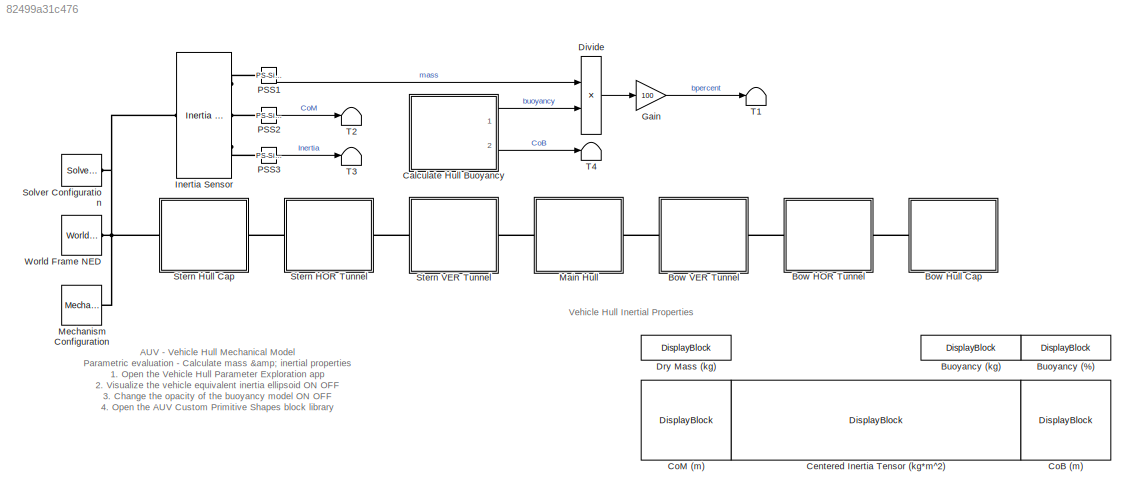
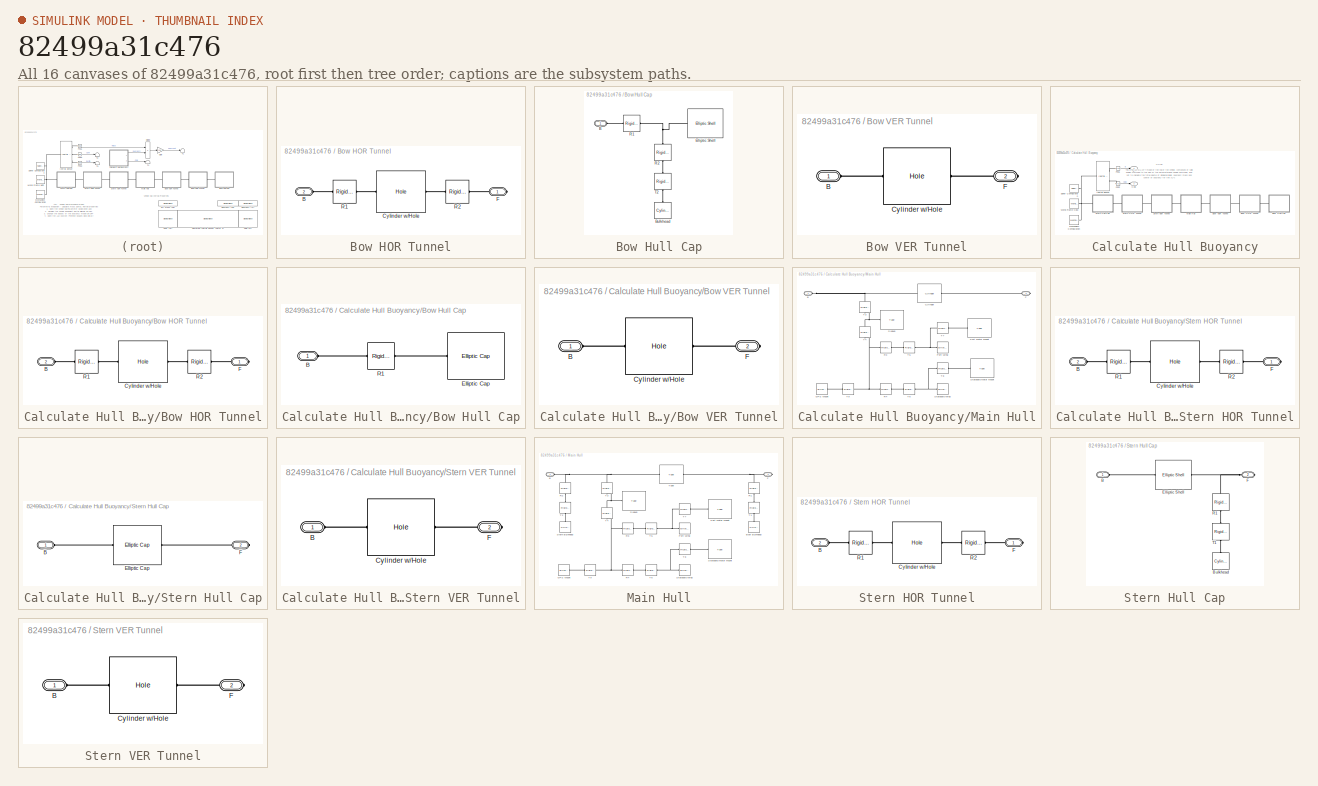
[diagram: thumbnail index - all 16 canvases of the model, root first then tree order]
MODEL slx_82499a31c476
KIND model
CONFIG AbsTol = auto
CONFIG EnableMultiTasking = on
CONFIG FixedStep = auto
CONFIG MaxStep = auto
CONFIG MinStep = auto
CONFIG PreLoadFcn = AUV_VehicleParameters;
CONFIG RelTol = 1e-3
CONFIG SampleTimeConstraint = Unconstrained
CONFIG Solver = ode23t
CONFIG SolverName = ode23t
CONFIG StartTime = 0.0
CONFIG StopTime = 0.001
BLOCK [SubSystem] Bow HOR Tunnel
  Ports = [0, 0, 0, 0, 0, 1, 1]
  RequestExecContextInheritance = off
BLOCK [PMIOPort] Bow HOR Tunnel/B
  Port = 2
  Side = Left
BLOCK [Reference] Bow HOR Tunnel/Cylinder w//Hole  REF=AUVCustomPrimitives_Lib/Cylinder w//Hole
  Ports = [0, 0, 0, 0, 0, 1, 1]
  SourceBlock = AUVCustomPrimitives_Lib/Cylinder w//Hole
  SourceType = Cylinder with Hole
BLOCK [PMIOPort] Bow HOR Tunnel/F
  Side = Right
BLOCK [Reference] Bow HOR Tunnel/R1  REF=sm_lib/Frames and
Transforms/Rigid
Transform
  Ports = [0, 0, 0, 0, 0, 1, 1]
  SourceBlock = sm_lib/Frames and\nTransforms/Rigid\nTransform
  SourceProductBaseCode = MS
  SourceType = Rigid\nTransform
BLOCK [Reference] Bow HOR Tunnel/R2  REF=sm_lib/Frames and
Transforms/Rigid
Transform
  Ports = [0, 0, 0, 0, 0, 1, 1]
  SourceBlock = sm_lib/Frames and\nTransforms/Rigid\nTransform
  SourceProductBaseCode = MS
  SourceType = Rigid\nTransform
BLOCK [SubSystem] Bow Hull Cap
  Ports = [0, 0, 0, 0, 0, 1]
  RequestExecContextInheritance = off
BLOCK [PMIOPort] Bow Hull Cap/B
  Side = Left
BLOCK [Reference] Bow Hull Cap/Bulkhead  REF=sm_lib/Body Elements/Cylindrical Solid
  NameLocation = right
  Ports = [0, 0, 0, 0, 0, 0, 1]
  SourceBlock = sm_lib/Body Elements/Cylindrical Solid
  SourceProductBaseCode = MS
  SourceType = Cylindrical Solid
BLOCK [Reference] Bow Hull Cap/Elliptic Shell  REF=AUVCustomPrimitives_Lib/Elliptic Shell
  Ports = [0, 0, 0, 0, 0, 1, 1]
  SourceBlock = AUVCustomPrimitives_Lib/Elliptic Shell
  SourceType = Elliptic Shell
BLOCK [Reference] Bow Hull Cap/R1  REF=sm_lib/Frames and
Transforms/Rigid
Transform
  Ports = [0, 0, 0, 0, 0, 1, 1]
  SourceBlock = sm_lib/Frames and\nTransforms/Rigid\nTransform
  SourceProductBaseCode = MS
  SourceType = Rigid\nTransform
BLOCK [Reference] Bow Hull Cap/R2  REF=sm_lib/Frames and
Transforms/Rigid
Transform
  NameLocation = right
  Ports = [0, 0, 0, 0, 0, 1, 1]
  SourceBlock = sm_lib/Frames and\nTransforms/Rigid\nTransform
  SourceProductBaseCode = MS
  SourceType = Rigid\nTransform
BLOCK [Reference] Bow Hull Cap/T2  REF=sm_lib/Frames and
Transforms/Rigid
Transform
  NameLocation = right
  Ports = [0, 0, 0, 0, 0, 1, 1]
  SourceBlock = sm_lib/Frames and\nTransforms/Rigid\nTransform
  SourceProductBaseCode = MS
  SourceType = Rigid\nTransform
BLOCK [SubSystem] Bow VER Tunnel
  Ports = [0, 0, 0, 0, 0, 1, 1]
  RequestExecContextInheritance = off
BLOCK [PMIOPort] Bow VER Tunnel/B
  Side = Left
BLOCK [Reference] Bow VER Tunnel/Cylinder w//Hole  REF=AUVCustomPrimitives_Lib/Cylinder w//Hole
  Ports = [0, 0, 0, 0, 0, 1, 1]
  SourceBlock = AUVCustomPrimitives_Lib/Cylinder w//Hole
  SourceType = Cylinder with Hole
BLOCK [PMIOPort] Bow VER Tunnel/F
  Port = 2
  Side = Right
BLOCK [DisplayBlock] Buoyancy (%)
  Format = short
  LabelPosition = Hide
  Transparency = 1
BLOCK [DisplayBlock] Buoyancy (kg)
  Format = short
  LabelPosition = Hide
  Transparency = 1
BLOCK [SubSystem] Calculate Hull Buoyancy
  Ports = [0, 2]
  RequestExecContextInheritance = off
BLOCK [SubSystem] Calculate Hull Buoyancy/Bow HOR Tunnel
  Ports = [0, 0, 0, 0, 0, 1, 1]
  RequestExecContextInheritance = off
BLOCK [PMIOPort] Calculate Hull Buoyancy/Bow HOR Tunnel/B
  Port = 2
  Side = Left
BLOCK [Reference] Calculate Hull Buoyancy/Bow HOR Tunnel/Cylinder w//Hole  REF=AUVCustomPrimitives_Lib/Cylinder w//Hole
  Ports = [0, 0, 0, 0, 0, 1, 1]
  SourceBlock = AUVCustomPrimitives_Lib/Cylinder w//Hole
  SourceType = Cylinder with Hole
BLOCK [PMIOPort] Calculate Hull Buoyancy/Bow HOR Tunnel/F
  Side = Right
BLOCK [Reference] Calculate Hull Buoyancy/Bow HOR Tunnel/R1  REF=sm_lib/Frames and
Transforms/Rigid
Transform
  Ports = [0, 0, 0, 0, 0, 1, 1]
  SourceBlock = sm_lib/Frames and\nTransforms/Rigid\nTransform
  SourceProductBaseCode = MS
  SourceType = Rigid\nTransform
BLOCK [Reference] Calculate Hull Buoyancy/Bow HOR Tunnel/R2  REF=sm_lib/Frames and
Transforms/Rigid
Transform
  Ports = [0, 0, 0, 0, 0, 1, 1]
  SourceBlock = sm_lib/Frames and\nTransforms/Rigid\nTransform
  SourceProductBaseCode = MS
  SourceType = Rigid\nTransform
BLOCK [SubSystem] Calculate Hull Buoyancy/Bow Hull Cap
  Ports = [0, 0, 0, 0, 0, 1]
  RequestExecContextInheritance = off
BLOCK [PMIOPort] Calculate Hull Buoyancy/Bow Hull Cap/B
  Side = Left
BLOCK [Reference] Calculate Hull Buoyancy/Bow Hull Cap/Elliptic Cap  REF=AUVCustomPrimitives_Lib/Elliptic Cap
  Ports = [0, 0, 0, 0, 0, 1, 1]
  SourceBlock = AUVCustomPrimitives_Lib/Elliptic Cap
  SourceType = Elliptic Cap
BLOCK [Reference] Calculate Hull Buoyancy/Bow Hull Cap/R1  REF=sm_lib/Frames and
Transforms/Rigid
Transform
  Ports = [0, 0, 0, 0, 0, 1, 1]
  SourceBlock = sm_lib/Frames and\nTransforms/Rigid\nTransform
  SourceProductBaseCode = MS
  SourceType = Rigid\nTransform
BLOCK [SubSystem] Calculate Hull Buoyancy/Bow VER Tunnel
  Ports = [0, 0, 0, 0, 0, 1, 1]
  RequestExecContextInheritance = off
BLOCK [PMIOPort] Calculate Hull Buoyancy/Bow VER Tunnel/B
  Side = Left
BLOCK [Reference] Calculate Hull Buoyancy/Bow VER Tunnel/Cylinder w//Hole  REF=AUVCustomPrimitives_Lib/Cylinder w//Hole
  Ports = [0, 0, 0, 0, 0, 1, 1]
  SourceBlock = AUVCustomPrimitives_Lib/Cylinder w//Hole
  SourceType = Cylinder with Hole
BLOCK [PMIOPort] Calculate Hull Buoyancy/Bow VER Tunnel/F
  Port = 2
  Side = Right
BLOCK [Outport] Calculate Hull Buoyancy/CoB
  Port = 2
BLOCK [Reference] Calculate Hull Buoyancy/Inertia Sensor  REF=sm_lib/Body Elements/Inertia Sensor
  Ports = [0, 0, 0, 0, 0, 1, 2]
  SourceBlock = sm_lib/Body Elements/Inertia Sensor
  SourceProductBaseCode = MS
  SourceType = Inertia Sensor
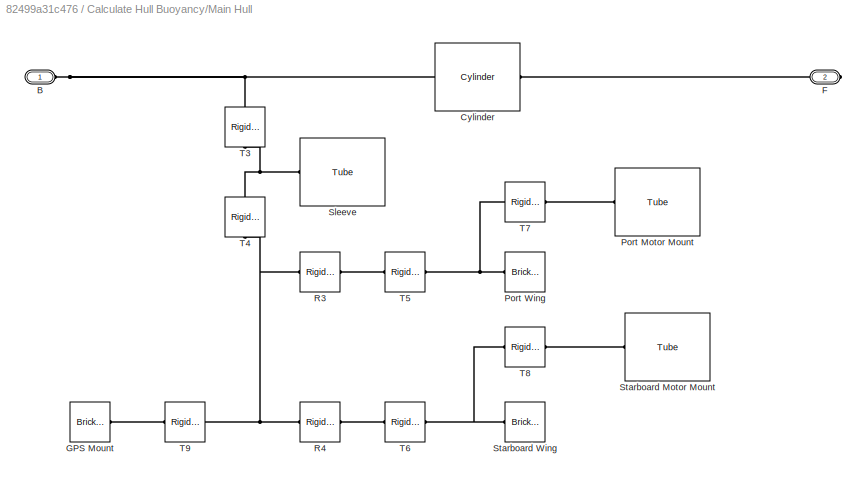
BLOCK [SubSystem] Calculate Hull Buoyancy/Main Hull
  Ports = [0, 0, 0, 0, 0, 1, 1]
  RequestExecContextInheritance = off
BLOCK [PMIOPort] Calculate Hull Buoyancy/Main Hull/B
  Side = Left
BLOCK [Reference] Calculate Hull Buoyancy/Main Hull/Cylinder  REF=AUVCustomPrimitives_Lib/Cylinder
  Ports = [0, 0, 0, 0, 0, 1, 1]
  SourceBlock = AUVCustomPrimitives_Lib/Cylinder
  SourceType = Cylinder
BLOCK [PMIOPort] Calculate Hull Buoyancy/Main Hull/F
  Port = 2
  Side = Right
BLOCK [Reference] Calculate Hull Buoyancy/Main Hull/GPS Mount  REF=sm_lib/Body Elements/Brick Solid
  Ports = [0, 0, 0, 0, 0, 0, 1]
  SourceBlock = sm_lib/Body Elements/Brick Solid
  SourceProductBaseCode = MS
  SourceType = Brick Solid
BLOCK [Reference] Calculate Hull Buoyancy/Main Hull/Port Motor Mount  REF=AUVCustomPrimitives_Lib/Tube
  Ports = [0, 0, 0, 0, 0, 1, 1]
  SourceBlock = AUVCustomPrimitives_Lib/Tube
  SourceType = Tube
BLOCK [Reference] Calculate Hull Buoyancy/Main Hull/Port Wing  REF=sm_lib/Body Elements/Brick Solid
  Ports = [0, 0, 0, 0, 0, 0, 1]
  SourceBlock = sm_lib/Body Elements/Brick Solid
  SourceProductBaseCode = MS
  SourceType = Brick Solid
BLOCK [Reference] Calculate Hull Buoyancy/Main Hull/R3  REF=sm_lib/Frames and
Transforms/Rigid
Transform
  Ports = [0, 0, 0, 0, 0, 1, 1]
  SourceBlock = sm_lib/Frames and\nTransforms/Rigid\nTransform
  SourceProductBaseCode = MS
  SourceType = Rigid\nTransform
BLOCK [Reference] Calculate Hull Buoyancy/Main Hull/R4  REF=sm_lib/Frames and
Transforms/Rigid
Transform
  Ports = [0, 0, 0, 0, 0, 1, 1]
  SourceBlock = sm_lib/Frames and\nTransforms/Rigid\nTransform
  SourceProductBaseCode = MS
  SourceType = Rigid\nTransform
BLOCK [Reference] Calculate Hull Buoyancy/Main Hull/Sleeve  REF=AUVCustomPrimitives_Lib/Tube
  Ports = [0, 0, 0, 0, 0, 1, 1]
  SourceBlock = AUVCustomPrimitives_Lib/Tube
  SourceType = Tube
BLOCK [Reference] Calculate Hull Buoyancy/Main Hull/Starboard Motor Mount  REF=AUVCustomPrimitives_Lib/Tube
  Ports = [0, 0, 0, 0, 0, 1, 1]
  SourceBlock = AUVCustomPrimitives_Lib/Tube
  SourceType = Tube
BLOCK [Reference] Calculate Hull Buoyancy/Main Hull/Starboard Wing  REF=sm_lib/Body Elements/Brick Solid
  Ports = [0, 0, 0, 0, 0, 0, 1]
  SourceBlock = sm_lib/Body Elements/Brick Solid
  SourceProductBaseCode = MS
  SourceType = Brick Solid
BLOCK [Reference] Calculate Hull Buoyancy/Main Hull/T3  REF=sm_lib/Frames and
Transforms/Rigid
Transform
  NameLocation = left
  Ports = [0, 0, 0, 0, 0, 1, 1]
  SourceBlock = sm_lib/Frames and\nTransforms/Rigid\nTransform
  SourceProductBaseCode = MS
  SourceType = Rigid\nTransform
BLOCK [Reference] Calculate Hull Buoyancy/Main Hull/T4  REF=sm_lib/Frames and
Transforms/Rigid
Transform
  NameLocation = left
  Ports = [0, 0, 0, 0, 0, 1, 1]
  SourceBlock = sm_lib/Frames and\nTransforms/Rigid\nTransform
  SourceProductBaseCode = MS
  SourceType = Rigid\nTransform
BLOCK [Reference] Calculate Hull Buoyancy/Main Hull/T5  REF=sm_lib/Frames and
Transforms/Rigid
Transform
  Ports = [0, 0, 0, 0, 0, 1, 1]
  SourceBlock = sm_lib/Frames and\nTransforms/Rigid\nTransform
  SourceProductBaseCode = MS
  SourceType = Rigid\nTransform
BLOCK [Reference] Calculate Hull Buoyancy/Main Hull/T6  REF=sm_lib/Frames and
Transforms/Rigid
Transform
  Ports = [0, 0, 0, 0, 0, 1, 1]
  SourceBlock = sm_lib/Frames and\nTransforms/Rigid\nTransform
  SourceProductBaseCode = MS
  SourceType = Rigid\nTransform
BLOCK [Reference] Calculate Hull Buoyancy/Main Hull/T7  REF=sm_lib/Frames and
Transforms/Rigid
Transform
  Ports = [0, 0, 0, 0, 0, 1, 1]
  SourceBlock = sm_lib/Frames and\nTransforms/Rigid\nTransform
  SourceProductBaseCode = MS
  SourceType = Rigid\nTransform
BLOCK [Reference] Calculate Hull Buoyancy/Main Hull/T8  REF=sm_lib/Frames and
Transforms/Rigid
Transform
  Ports = [0, 0, 0, 0, 0, 1, 1]
  SourceBlock = sm_lib/Frames and\nTransforms/Rigid\nTransform
  SourceProductBaseCode = MS
  SourceType = Rigid\nTransform
BLOCK [Reference] Calculate Hull Buoyancy/Main Hull/T9  REF=sm_lib/Frames and
Transforms/Rigid
Transform
  Ports = [0, 0, 0, 0, 0, 1, 1]
  SourceBlock = sm_lib/Frames and\nTransforms/Rigid\nTransform
  SourceProductBaseCode = MS
  SourceType = Rigid\nTransform
BLOCK [Reference] Calculate Hull Buoyancy/Mechanism Configuration  REF=sm_lib/Utilities/Mechanism
Configuration
  Ports = [0, 0, 0, 0, 0, 0, 1]
  SourceBlock = sm_lib/Utilities/Mechanism\nConfiguration
  SourceProductBaseCode = MS
  SourceType = Mechanism\nConfiguration
BLOCK [Reference] Calculate Hull Buoyancy/PSS1  REF=nesl_utility/PS-Simulink
Converter
  Ports = [0, 1, 0, 0, 0, 1]
  SourceBlock = nesl_utility/PS-Simulink\nConverter
  SourceProductBaseCode = SS
  SourceType = PS-Simulink\nConverter
BLOCK [Reference] Calculate Hull Buoyancy/PSS2  REF=nesl_utility/PS-Simulink
Converter
  Ports = [0, 1, 0, 0, 0, 1]
  SourceBlock = nesl_utility/PS-Simulink\nConverter
  SourceProductBaseCode = SS
  SourceType = PS-Simulink\nConverter
BLOCK [Reference] Calculate Hull Buoyancy/Solver Configuration  REF=nesl_utility/Solver
Configuration
  Ports = [0, 0, 0, 0, 0, 0, 1]
  SourceBlock = nesl_utility/Solver\nConfiguration
  SourceProductBaseCode = MT,SS
  SourceType = Solver\nConfiguration
BLOCK [SubSystem] Calculate Hull Buoyancy/Stern HOR Tunnel
  Ports = [0, 0, 0, 0, 0, 1, 1]
  RequestExecContextInheritance = off
BLOCK [PMIOPort] Calculate Hull Buoyancy/Stern HOR Tunnel/B
  Port = 2
  Side = Left
BLOCK [Reference] Calculate Hull Buoyancy/Stern HOR Tunnel/Cylinder w//Hole  REF=AUVCustomPrimitives_Lib/Cylinder w//Hole
  Ports = [0, 0, 0, 0, 0, 1, 1]
  SourceBlock = AUVCustomPrimitives_Lib/Cylinder w//Hole
  SourceType = Cylinder with Hole
BLOCK [PMIOPort] Calculate Hull Buoyancy/Stern HOR Tunnel/F
  Side = Right
BLOCK [Reference] Calculate Hull Buoyancy/Stern HOR Tunnel/R1  REF=sm_lib/Frames and
Transforms/Rigid
Transform
  Ports = [0, 0, 0, 0, 0, 1, 1]
  SourceBlock = sm_lib/Frames and\nTransforms/Rigid\nTransform
  SourceProductBaseCode = MS
  SourceType = Rigid\nTransform
BLOCK [Reference] Calculate Hull Buoyancy/Stern HOR Tunnel/R2  REF=sm_lib/Frames and
Transforms/Rigid
Transform
  Ports = [0, 0, 0, 0, 0, 1, 1]
  SourceBlock = sm_lib/Frames and\nTransforms/Rigid\nTransform
  SourceProductBaseCode = MS
  SourceType = Rigid\nTransform
BLOCK [SubSystem] Calculate Hull Buoyancy/Stern Hull Cap
  Ports = [0, 0, 0, 0, 0, 1, 1]
  RequestExecContextInheritance = off
BLOCK [PMIOPort] Calculate Hull Buoyancy/Stern Hull Cap/B
  Side = Left
BLOCK [Reference] Calculate Hull Buoyancy/Stern Hull Cap/Elliptic Cap  REF=AUVCustomPrimitives_Lib/Elliptic Cap
  Ports = [0, 0, 0, 0, 0, 1, 1]
  SourceBlock = AUVCustomPrimitives_Lib/Elliptic Cap
  SourceType = Elliptic Cap
BLOCK [PMIOPort] Calculate Hull Buoyancy/Stern Hull Cap/F
  Port = 2
  Side = Right
BLOCK [SubSystem] Calculate Hull Buoyancy/Stern VER Tunnel
  Ports = [0, 0, 0, 0, 0, 1, 1]
  RequestExecContextInheritance = off
BLOCK [PMIOPort] Calculate Hull Buoyancy/Stern VER Tunnel/B
  Side = Left
BLOCK [Reference] Calculate Hull Buoyancy/Stern VER Tunnel/Cylinder w//Hole  REF=AUVCustomPrimitives_Lib/Cylinder w//Hole
  Ports = [0, 0, 0, 0, 0, 1, 1]
  SourceBlock = AUVCustomPrimitives_Lib/Cylinder w//Hole
  SourceType = Cylinder with Hole
BLOCK [PMIOPort] Calculate Hull Buoyancy/Stern VER Tunnel/F
  Port = 2
  Side = Right
BLOCK [Reference] Calculate Hull Buoyancy/World Frame NED  REF=sm_lib/Frames and
Transforms/World Frame
  Ports = [0, 0, 0, 0, 0, 0, 1]
  SourceBlock = sm_lib/Frames and\nTransforms/World Frame
  SourceProductBaseCode = MS
  SourceType = World Frame
BLOCK [Outport] Calculate Hull Buoyancy/b
BLOCK [DisplayBlock] Centered Inertia Tensor (kg*m^2)
  Format = short
  LabelPosition = Hide
  Transparency = 1
BLOCK [DisplayBlock] CoB (m)
  Format = short
  LabelPosition = Hide
  Transparency = 1
BLOCK [DisplayBlock] CoM (m)
  Format = short
  LabelPosition = Hide
  Transparency = 1
BLOCK [Product] Divide
  Inputs = */
  Ports = [2, 1]
BLOCK [DisplayBlock] Dry Mass (kg)
  Format = short
  LabelPosition = Hide
  Transparency = 1
BLOCK [Gain] Gain
  Gain = 100
BLOCK [Reference] Inertia Sensor  REF=sm_lib/Body Elements/Inertia Sensor
  Ports = [0, 0, 0, 0, 0, 1, 3]
  SourceBlock = sm_lib/Body Elements/Inertia Sensor
  SourceProductBaseCode = MS
  SourceType = Inertia Sensor
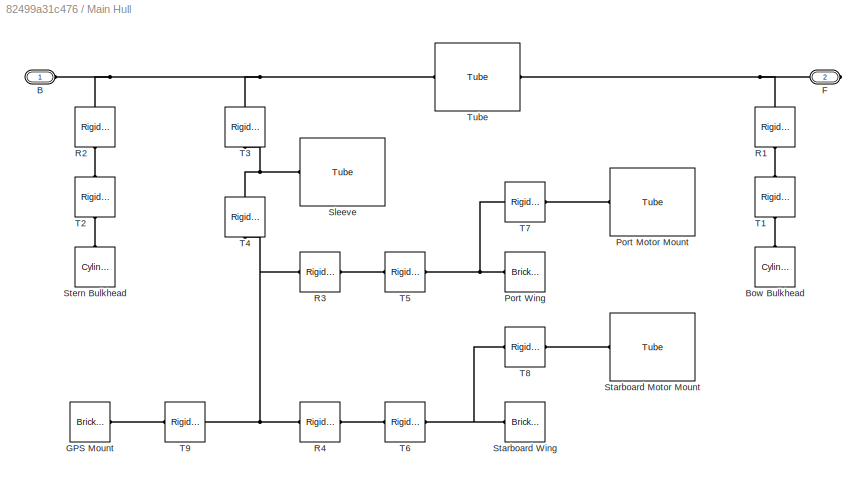
BLOCK [SubSystem] Main Hull
  Ports = [0, 0, 0, 0, 0, 1, 1]
  RequestExecContextInheritance = off
BLOCK [PMIOPort] Main Hull/B
  Side = Left
BLOCK [Reference] Main Hull/Bow Bulkhead  REF=sm_lib/Body Elements/Cylindrical Solid
  NameLocation = right
  Ports = [0, 0, 0, 0, 0, 0, 1]
  SourceBlock = sm_lib/Body Elements/Cylindrical Solid
  SourceProductBaseCode = MS
  SourceType = Cylindrical Solid
BLOCK [PMIOPort] Main Hull/F
  Port = 2
  Side = Right
BLOCK [Reference] Main Hull/GPS Mount  REF=sm_lib/Body Elements/Brick Solid
  Ports = [0, 0, 0, 0, 0, 0, 1]
  SourceBlock = sm_lib/Body Elements/Brick Solid
  SourceProductBaseCode = MS
  SourceType = Brick Solid
BLOCK [Reference] Main Hull/Port Motor Mount  REF=AUVCustomPrimitives_Lib/Tube
  Ports = [0, 0, 0, 0, 0, 1, 1]
  SourceBlock = AUVCustomPrimitives_Lib/Tube
  SourceType = Tube
BLOCK [Reference] Main Hull/Port Wing  REF=sm_lib/Body Elements/Brick Solid
  Ports = [0, 0, 0, 0, 0, 0, 1]
  SourceBlock = sm_lib/Body Elements/Brick Solid
  SourceProductBaseCode = MS
  SourceType = Brick Solid
BLOCK [Reference] Main Hull/R1  REF=sm_lib/Frames and
Transforms/Rigid
Transform
  NameLocation = right
  Ports = [0, 0, 0, 0, 0, 1, 1]
  SourceBlock = sm_lib/Frames and\nTransforms/Rigid\nTransform
  SourceProductBaseCode = MS
  SourceType = Rigid\nTransform
BLOCK [Reference] Main Hull/R2  REF=sm_lib/Frames and
Transforms/Rigid
Transform
  NameLocation = right
  Ports = [0, 0, 0, 0, 0, 1, 1]
  SourceBlock = sm_lib/Frames and\nTransforms/Rigid\nTransform
  SourceProductBaseCode = MS
  SourceType = Rigid\nTransform
BLOCK [Reference] Main Hull/R3  REF=sm_lib/Frames and
Transforms/Rigid
Transform
  Ports = [0, 0, 0, 0, 0, 1, 1]
  SourceBlock = sm_lib/Frames and\nTransforms/Rigid\nTransform
  SourceProductBaseCode = MS
  SourceType = Rigid\nTransform
BLOCK [Reference] Main Hull/R4  REF=sm_lib/Frames and
Transforms/Rigid
Transform
  Ports = [0, 0, 0, 0, 0, 1, 1]
  SourceBlock = sm_lib/Frames and\nTransforms/Rigid\nTransform
  SourceProductBaseCode = MS
  SourceType = Rigid\nTransform
BLOCK [Reference] Main Hull/Sleeve  REF=AUVCustomPrimitives_Lib/Tube
  Ports = [0, 0, 0, 0, 0, 1, 1]
  SourceBlock = AUVCustomPrimitives_Lib/Tube
  SourceType = Tube
BLOCK [Reference] Main Hull/Starboard Motor Mount  REF=AUVCustomPrimitives_Lib/Tube
  Ports = [0, 0, 0, 0, 0, 1, 1]
  SourceBlock = AUVCustomPrimitives_Lib/Tube
  SourceType = Tube
BLOCK [Reference] Main Hull/Starboard Wing  REF=sm_lib/Body Elements/Brick Solid
  Ports = [0, 0, 0, 0, 0, 0, 1]
  SourceBlock = sm_lib/Body Elements/Brick Solid
  SourceProductBaseCode = MS
  SourceType = Brick Solid
BLOCK [Reference] Main Hull/Stern Bulkhead  REF=sm_lib/Body Elements/Cylindrical Solid
  NameLocation = right
  Ports = [0, 0, 0, 0, 0, 0, 1]
  SourceBlock = sm_lib/Body Elements/Cylindrical Solid
  SourceProductBaseCode = MS
  SourceType = Cylindrical Solid
BLOCK [Reference] Main Hull/T1  REF=sm_lib/Frames and
Transforms/Rigid
Transform
  NameLocation = right
  Ports = [0, 0, 0, 0, 0, 1, 1]
  SourceBlock = sm_lib/Frames and\nTransforms/Rigid\nTransform
  SourceProductBaseCode = MS
  SourceType = Rigid\nTransform
BLOCK [Reference] Main Hull/T2  REF=sm_lib/Frames and
Transforms/Rigid
Transform
  NameLocation = right
  Ports = [0, 0, 0, 0, 0, 1, 1]
  SourceBlock = sm_lib/Frames and\nTransforms/Rigid\nTransform
  SourceProductBaseCode = MS
  SourceType = Rigid\nTransform
BLOCK [Reference] Main Hull/T3  REF=sm_lib/Frames and
Transforms/Rigid
Transform
  NameLocation = left
  Ports = [0, 0, 0, 0, 0, 1, 1]
  SourceBlock = sm_lib/Frames and\nTransforms/Rigid\nTransform
  SourceProductBaseCode = MS
  SourceType = Rigid\nTransform
BLOCK [Reference] Main Hull/T4  REF=sm_lib/Frames and
Transforms/Rigid
Transform
  NameLocation = left
  Ports = [0, 0, 0, 0, 0, 1, 1]
  SourceBlock = sm_lib/Frames and\nTransforms/Rigid\nTransform
  SourceProductBaseCode = MS
  SourceType = Rigid\nTransform
BLOCK [Reference] Main Hull/T5  REF=sm_lib/Frames and
Transforms/Rigid
Transform
  Ports = [0, 0, 0, 0, 0, 1, 1]
  SourceBlock = sm_lib/Frames and\nTransforms/Rigid\nTransform
  SourceProductBaseCode = MS
  SourceType = Rigid\nTransform
BLOCK [Reference] Main Hull/T6  REF=sm_lib/Frames and
Transforms/Rigid
Transform
  Ports = [0, 0, 0, 0, 0, 1, 1]
  SourceBlock = sm_lib/Frames and\nTransforms/Rigid\nTransform
  SourceProductBaseCode = MS
  SourceType = Rigid\nTransform
BLOCK [Reference] Main Hull/T7  REF=sm_lib/Frames and
Transforms/Rigid
Transform
  Ports = [0, 0, 0, 0, 0, 1, 1]
  SourceBlock = sm_lib/Frames and\nTransforms/Rigid\nTransform
  SourceProductBaseCode = MS
  SourceType = Rigid\nTransform
BLOCK [Reference] Main Hull/T8  REF=sm_lib/Frames and
Transforms/Rigid
Transform
  Ports = [0, 0, 0, 0, 0, 1, 1]
  SourceBlock = sm_lib/Frames and\nTransforms/Rigid\nTransform
  SourceProductBaseCode = MS
  SourceType = Rigid\nTransform
BLOCK [Reference] Main Hull/T9  REF=sm_lib/Frames and
Transforms/Rigid
Transform
  Ports = [0, 0, 0, 0, 0, 1, 1]
  SourceBlock = sm_lib/Frames and\nTransforms/Rigid\nTransform
  SourceProductBaseCode = MS
  SourceType = Rigid\nTransform
BLOCK [Reference] Main Hull/Tube  REF=AUVCustomPrimitives_Lib/Tube
  Ports = [0, 0, 0, 0, 0, 1, 1]
  SourceBlock = AUVCustomPrimitives_Lib/Tube
  SourceType = Tube
BLOCK [Reference] Mechanism Configuration  REF=sm_lib/Utilities/Mechanism
Configuration
  Ports = [0, 0, 0, 0, 0, 0, 1]
  SourceBlock = sm_lib/Utilities/Mechanism\nConfiguration
  SourceProductBaseCode = MS
  SourceType = Mechanism\nConfiguration
BLOCK [Reference] PSS1  REF=nesl_utility/PS-Simulink
Converter
  Ports = [0, 1, 0, 0, 0, 1]
  SourceBlock = nesl_utility/PS-Simulink\nConverter
  SourceProductBaseCode = SS
  SourceType = PS-Simulink\nConverter
BLOCK [Reference] PSS2  REF=nesl_utility/PS-Simulink
Converter
  Ports = [0, 1, 0, 0, 0, 1]
  SourceBlock = nesl_utility/PS-Simulink\nConverter
  SourceProductBaseCode = SS
  SourceType = PS-Simulink\nConverter
BLOCK [Reference] PSS3  REF=nesl_utility/PS-Simulink
Converter
  Ports = [0, 1, 0, 0, 0, 1]
  SourceBlock = nesl_utility/PS-Simulink\nConverter
  SourceProductBaseCode = SS
  SourceType = PS-Simulink\nConverter
BLOCK [Reference] Solver Configuration  REF=nesl_utility/Solver
Configuration
  Ports = [0, 0, 0, 0, 0, 0, 1]
  SourceBlock = nesl_utility/Solver\nConfiguration
  SourceProductBaseCode = MT,SS
  SourceType = Solver\nConfiguration
BLOCK [SubSystem] Stern HOR Tunnel
  Ports = [0, 0, 0, 0, 0, 1, 1]
  RequestExecContextInheritance = off
BLOCK [PMIOPort] Stern HOR Tunnel/B
  Port = 2
  Side = Left
BLOCK [Reference] Stern HOR Tunnel/Cylinder w//Hole  REF=AUVCustomPrimitives_Lib/Cylinder w//Hole
  Ports = [0, 0, 0, 0, 0, 1, 1]
  SourceBlock = AUVCustomPrimitives_Lib/Cylinder w//Hole
  SourceType = Cylinder with Hole
BLOCK [PMIOPort] Stern HOR Tunnel/F
  Side = Right
BLOCK [Reference] Stern HOR Tunnel/R1  REF=sm_lib/Frames and
Transforms/Rigid
Transform
  Ports = [0, 0, 0, 0, 0, 1, 1]
  SourceBlock = sm_lib/Frames and\nTransforms/Rigid\nTransform
  SourceProductBaseCode = MS
  SourceType = Rigid\nTransform
BLOCK [Reference] Stern HOR Tunnel/R2  REF=sm_lib/Frames and
Transforms/Rigid
Transform
  Ports = [0, 0, 0, 0, 0, 1, 1]
  SourceBlock = sm_lib/Frames and\nTransforms/Rigid\nTransform
  SourceProductBaseCode = MS
  SourceType = Rigid\nTransform
BLOCK [SubSystem] Stern Hull Cap
  Ports = [0, 0, 0, 0, 0, 1, 1]
  RequestExecContextInheritance = off
BLOCK [PMIOPort] Stern Hull Cap/B
  Side = Left
BLOCK [Reference] Stern Hull Cap/Bulkhead  REF=sm_lib/Body Elements/Cylindrical Solid
  NameLocation = right
  Ports = [0, 0, 0, 0, 0, 0, 1]
  SourceBlock = sm_lib/Body Elements/Cylindrical Solid
  SourceProductBaseCode = MS
  SourceType = Cylindrical Solid
BLOCK [Reference] Stern Hull Cap/Elliptic Shell  REF=AUVCustomPrimitives_Lib/Elliptic Shell
  Ports = [0, 0, 0, 0, 0, 1, 1]
  SourceBlock = AUVCustomPrimitives_Lib/Elliptic Shell
  SourceType = Elliptic Shell
BLOCK [PMIOPort] Stern Hull Cap/F
  Port = 2
  Side = Right
BLOCK [Reference] Stern Hull Cap/R1  REF=sm_lib/Frames and
Transforms/Rigid
Transform
  NameLocation = right
  Ports = [0, 0, 0, 0, 0, 1, 1]
  SourceBlock = sm_lib/Frames and\nTransforms/Rigid\nTransform
  SourceProductBaseCode = MS
  SourceType = Rigid\nTransform
BLOCK [Reference] Stern Hull Cap/T1  REF=sm_lib/Frames and
Transforms/Rigid
Transform
  NameLocation = right
  Ports = [0, 0, 0, 0, 0, 1, 1]
  SourceBlock = sm_lib/Frames and\nTransforms/Rigid\nTransform
  SourceProductBaseCode = MS
  SourceType = Rigid\nTransform
BLOCK [SubSystem] Stern VER Tunnel
  Ports = [0, 0, 0, 0, 0, 1, 1]
  RequestExecContextInheritance = off
BLOCK [PMIOPort] Stern VER Tunnel/B
  Side = Left
BLOCK [Reference] Stern VER Tunnel/Cylinder w//Hole  REF=AUVCustomPrimitives_Lib/Cylinder w//Hole
  Ports = [0, 0, 0, 0, 0, 1, 1]
  SourceBlock = AUVCustomPrimitives_Lib/Cylinder w//Hole
  SourceType = Cylinder with Hole
BLOCK [PMIOPort] Stern VER Tunnel/F
  Port = 2
  Side = Right
BLOCK [Terminator] T1
BLOCK [Terminator] T2
BLOCK [Terminator] T3
BLOCK [Terminator] T4
BLOCK [Reference] World Frame NED  REF=sm_lib/Frames and
Transforms/World Frame
  Ports = [0, 0, 0, 0, 0, 0, 1]
  SourceBlock = sm_lib/Frames and\nTransforms/World Frame
  SourceProductBaseCode = MS
  SourceType = World Frame
ANNOTATION (root): AUV - Vehicle Hull Mechanical Model Parametric evaluation - Calculate mass & inertial properties 1. Open the Vehicle Hull Parameter Exploration app 2. Visualize the vehicle equivalent inertia ellipsoid ON OFF 3. Change the opacity of the buoyancy model ON OFF 4. Open the AUV Custom Primitive Shapes block library 5. Open the 6-DOF model of the vehicle hull
ANNOTATION (root): Vehicle Hull Inertial Properties
ANNOTATION Calculate Hull Buoyancy: NOTE: This is an AUXILIARY model of the hull of the vehicle, composed of solid bodies matched to the size of the parameterized vehicle hull model, and set to calculate the total volume of displaced liquid, buoyancy mass and center of buoyancy for the AUV.
LINE Calculate Hull Buoyancy/PSS1:1 -> Calculate Hull Buoyancy/b:1
LINE Calculate Hull Buoyancy/PSS2:1 -> Calculate Hull Buoyancy/CoB:1
LINE Calculate Hull Buoyancy:1 -> Divide:2
LINE Calculate Hull Buoyancy:2 -> T4:1
LINE Divide:1 -> Gain:1
LINE Gain:1 -> T1:1
LINE PSS1:1 -> Divide:1
LINE PSS2:1 -> T2:1
LINE PSS3:1 -> T3:1
PLINE Bow HOR Tunnel/B:RConn1 -- Bow HOR Tunnel/R1:LConn1
PLINE Bow HOR Tunnel/Cylinder w//Hole:LConn1 -- Bow HOR Tunnel/R1:RConn1
PLINE Bow HOR Tunnel/Cylinder w//Hole:RConn1 -- Bow HOR Tunnel/R2:LConn1
PLINE Bow HOR Tunnel/F:RConn1 -- Bow HOR Tunnel/R2:RConn1
PLINE Bow HOR Tunnel:LConn1 -- Bow VER Tunnel:RConn1
PLINE Bow HOR Tunnel:RConn1 -- Bow Hull Cap:LConn1
PLINE Bow Hull Cap/B:RConn1 -- Bow Hull Cap/R1:LConn1
PLINE Bow Hull Cap/Bulkhead:RConn1 -- Bow Hull Cap/T2:RConn1
PNET net1: Bow Hull Cap/Elliptic Shell:RConn1 -- Bow Hull Cap/R1:RConn1 -- Bow Hull Cap/R2:LConn1
PLINE Bow Hull Cap/R2:RConn1 -- Bow Hull Cap/T2:LConn1
PLINE Bow VER Tunnel/B:RConn1 -- Bow VER Tunnel/Cylinder w//Hole:LConn1
PLINE Bow VER Tunnel/Cylinder w//Hole:RConn1 -- Bow VER Tunnel/F:RConn1
PLINE Bow VER Tunnel:LConn1 -- Main Hull:RConn1
PLINE Calculate Hull Buoyancy/Bow HOR Tunnel/B:RConn1 -- Calculate Hull Buoyancy/Bow HOR Tunnel/R1:LConn1
PLINE Calculate Hull Buoyancy/Bow HOR Tunnel/Cylinder w//Hole:LConn1 -- Calculate Hull Buoyancy/Bow HOR Tunnel/R1:RConn1
PLINE Calculate Hull Buoyancy/Bow HOR Tunnel/Cylinder w//Hole:RConn1 -- Calculate Hull Buoyancy/Bow HOR Tunnel/R2:LConn1
PLINE Calculate Hull Buoyancy/Bow HOR Tunnel/F:RConn1 -- Calculate Hull Buoyancy/Bow HOR Tunnel/R2:RConn1
PLINE Calculate Hull Buoyancy/Bow HOR Tunnel:LConn1 -- Calculate Hull Buoyancy/Bow VER Tunnel:RConn1
PLINE Calculate Hull Buoyancy/Bow HOR Tunnel:RConn1 -- Calculate Hull Buoyancy/Bow Hull Cap:LConn1
PLINE Calculate Hull Buoyancy/Bow Hull Cap/B:RConn1 -- Calculate Hull Buoyancy/Bow Hull Cap/R1:LConn1
PLINE Calculate Hull Buoyancy/Bow Hull Cap/Elliptic Cap:RConn1 -- Calculate Hull Buoyancy/Bow Hull Cap/R1:RConn1
PLINE Calculate Hull Buoyancy/Bow VER Tunnel/B:RConn1 -- Calculate Hull Buoyancy/Bow VER Tunnel/Cylinder w//Hole:LConn1
PLINE Calculate Hull Buoyancy/Bow VER Tunnel/Cylinder w//Hole:RConn1 -- Calculate Hull Buoyancy/Bow VER Tunnel/F:RConn1
PLINE Calculate Hull Buoyancy/Bow VER Tunnel:LConn1 -- Calculate Hull Buoyancy/Main Hull:RConn1
PNET net2: Calculate Hull Buoyancy/Inertia Sensor:LConn1 -- Calculate Hull Buoyancy/Mechanism Configuration:RConn1 -- Calculate Hull Buoyancy/Solver Configuration:RConn1 -- Calculate Hull Buoyancy/Stern Hull Cap:LConn1 -- Calculate Hull Buoyancy/World Frame NED:RConn1
PLINE Calculate Hull Buoyancy/Inertia Sensor:RConn1 -- Calculate Hull Buoyancy/PSS1:LConn1
PLINE Calculate Hull Buoyancy/Inertia Sensor:RConn2 -- Calculate Hull Buoyancy/PSS2:LConn1
PNET net3: Calculate Hull Buoyancy/Main Hull/B:RConn1 -- Calculate Hull Buoyancy/Main Hull/Cylinder:LConn1 -- Calculate Hull Buoyancy/Main Hull/T3:LConn1
PLINE Calculate Hull Buoyancy/Main Hull/Cylinder:RConn1 -- Calculate Hull Buoyancy/Main Hull/F:RConn1
PLINE Calculate Hull Buoyancy/Main Hull/GPS Mount:RConn1 -- Calculate Hull Buoyancy/Main Hull/T9:RConn1
PLINE Calculate Hull Buoyancy/Main Hull/Port Motor Mount:LConn1 -- Calculate Hull Buoyancy/Main Hull/T7:RConn1
PNET net4: Calculate Hull Buoyancy/Main Hull/Port Wing:RConn1 -- Calculate Hull Buoyancy/Main Hull/T5:RConn1 -- Calculate Hull Buoyancy/Main Hull/T7:LConn1
PNET net5: Calculate Hull Buoyancy/Main Hull/R3:LConn1 -- Calculate Hull Buoyancy/Main Hull/R4:LConn1 -- Calculate Hull Buoyancy/Main Hull/T4:RConn1 -- Calculate Hull Buoyancy/Main Hull/T9:LConn1
PLINE Calculate Hull Buoyancy/Main Hull/R3:RConn1 -- Calculate Hull Buoyancy/Main Hull/T5:LConn1
PLINE Calculate Hull Buoyancy/Main Hull/R4:RConn1 -- Calculate Hull Buoyancy/Main Hull/T6:LConn1
PNET net6: Calculate Hull Buoyancy/Main Hull/Sleeve:LConn1 -- Calculate Hull Buoyancy/Main Hull/T3:RConn1 -- Calculate Hull Buoyancy/Main Hull/T4:LConn1
PLINE Calculate Hull Buoyancy/Main Hull/Starboard Motor Mount:LConn1 -- Calculate Hull Buoyancy/Main Hull/T8:RConn1
PNET net7: Calculate Hull Buoyancy/Main Hull/Starboard Wing:RConn1 -- Calculate Hull Buoyancy/Main Hull/T6:RConn1 -- Calculate Hull Buoyancy/Main Hull/T8:LConn1
PLINE Calculate Hull Buoyancy/Main Hull:LConn1 -- Calculate Hull Buoyancy/Stern VER Tunnel:RConn1
PLINE Calculate Hull Buoyancy/Stern HOR Tunnel/B:RConn1 -- Calculate Hull Buoyancy/Stern HOR Tunnel/R1:LConn1
PLINE Calculate Hull Buoyancy/Stern HOR Tunnel/Cylinder w//Hole:LConn1 -- Calculate Hull Buoyancy/Stern HOR Tunnel/R1:RConn1
PLINE Calculate Hull Buoyancy/Stern HOR Tunnel/Cylinder w//Hole:RConn1 -- Calculate Hull Buoyancy/Stern HOR Tunnel/R2:LConn1
PLINE Calculate Hull Buoyancy/Stern HOR Tunnel/F:RConn1 -- Calculate Hull Buoyancy/Stern HOR Tunnel/R2:RConn1
PLINE Calculate Hull Buoyancy/Stern HOR Tunnel:LConn1 -- Calculate Hull Buoyancy/Stern Hull Cap:RConn1
PLINE Calculate Hull Buoyancy/Stern HOR Tunnel:RConn1 -- Calculate Hull Buoyancy/Stern VER Tunnel:LConn1
PLINE Calculate Hull Buoyancy/Stern Hull Cap/B:RConn1 -- Calculate Hull Buoyancy/Stern Hull Cap/Elliptic Cap:LConn1
PLINE Calculate Hull Buoyancy/Stern Hull Cap/Elliptic Cap:RConn1 -- Calculate Hull Buoyancy/Stern Hull Cap/F:RConn1
PLINE Calculate Hull Buoyancy/Stern VER Tunnel/B:RConn1 -- Calculate Hull Buoyancy/Stern VER Tunnel/Cylinder w//Hole:LConn1
PLINE Calculate Hull Buoyancy/Stern VER Tunnel/Cylinder w//Hole:RConn1 -- Calculate Hull Buoyancy/Stern VER Tunnel/F:RConn1
PNET net8: Inertia Sensor:LConn1 -- Mechanism Configuration:RConn1 -- Solver Configuration:RConn1 -- Stern Hull Cap:LConn1 -- World Frame NED:RConn1
PLINE Inertia Sensor:RConn1 -- PSS1:LConn1
PLINE Inertia Sensor:RConn2 -- PSS2:LConn1
PLINE Inertia Sensor:RConn3 -- PSS3:LConn1
PNET net9: Main Hull/B:RConn1 -- Main Hull/R2:LConn1 -- Main Hull/T3:LConn1 -- Main Hull/Tube:LConn1
PLINE Main Hull/Bow Bulkhead:RConn1 -- Main Hull/T1:RConn1
PNET net10: Main Hull/F:RConn1 -- Main Hull/R1:LConn1 -- Main Hull/Tube:RConn1
PLINE Main Hull/GPS Mount:RConn1 -- Main Hull/T9:RConn1
PLINE Main Hull/Port Motor Mount:LConn1 -- Main Hull/T7:RConn1
PNET net11: Main Hull/Port Wing:RConn1 -- Main Hull/T5:RConn1 -- Main Hull/T7:LConn1
PLINE Main Hull/R1:RConn1 -- Main Hull/T1:LConn1
PLINE Main Hull/R2:RConn1 -- Main Hull/T2:LConn1
PNET net12: Main Hull/R3:LConn1 -- Main Hull/R4:LConn1 -- Main Hull/T4:RConn1 -- Main Hull/T9:LConn1
PLINE Main Hull/R3:RConn1 -- Main Hull/T5:LConn1
PLINE Main Hull/R4:RConn1 -- Main Hull/T6:LConn1
PNET net13: Main Hull/Sleeve:LConn1 -- Main Hull/T3:RConn1 -- Main Hull/T4:LConn1
PLINE Main Hull/Starboard Motor Mount:LConn1 -- Main Hull/T8:RConn1
PNET net14: Main Hull/Starboard Wing:RConn1 -- Main Hull/T6:RConn1 -- Main Hull/T8:LConn1
PLINE Main Hull/Stern Bulkhead:RConn1 -- Main Hull/T2:RConn1
PLINE Main Hull:LConn1 -- Stern VER Tunnel:RConn1
PLINE Stern HOR Tunnel/B:RConn1 -- Stern HOR Tunnel/R1:LConn1
PLINE Stern HOR Tunnel/Cylinder w//Hole:LConn1 -- Stern HOR Tunnel/R1:RConn1
PLINE Stern HOR Tunnel/Cylinder w//Hole:RConn1 -- Stern HOR Tunnel/R2:LConn1
PLINE Stern HOR Tunnel/F:RConn1 -- Stern HOR Tunnel/R2:RConn1
PLINE Stern HOR Tunnel:LConn1 -- Stern Hull Cap:RConn1
PLINE Stern HOR Tunnel:RConn1 -- Stern VER Tunnel:LConn1
PLINE Stern Hull Cap/B:RConn1 -- Stern Hull Cap/Elliptic Shell:LConn1
PLINE Stern Hull Cap/Bulkhead:RConn1 -- Stern Hull Cap/T1:RConn1
PNET net15: Stern Hull Cap/Elliptic Shell:RConn1 -- Stern Hull Cap/F:RConn1 -- Stern Hull Cap/R1:LConn1
PLINE Stern Hull Cap/R1:RConn1 -- Stern Hull Cap/T1:LConn1
PLINE Stern VER Tunnel/B:RConn1 -- Stern VER Tunnel/Cylinder w//Hole:LConn1
PLINE Stern VER Tunnel/Cylinder w//Hole:RConn1 -- Stern VER Tunnel/F:RConn1
note: PNET lines group multi-terminal physical nets as a canonical sorted terminal list (undirected conserving connections); 2-terminal nets keep the pairwise PLINE form
